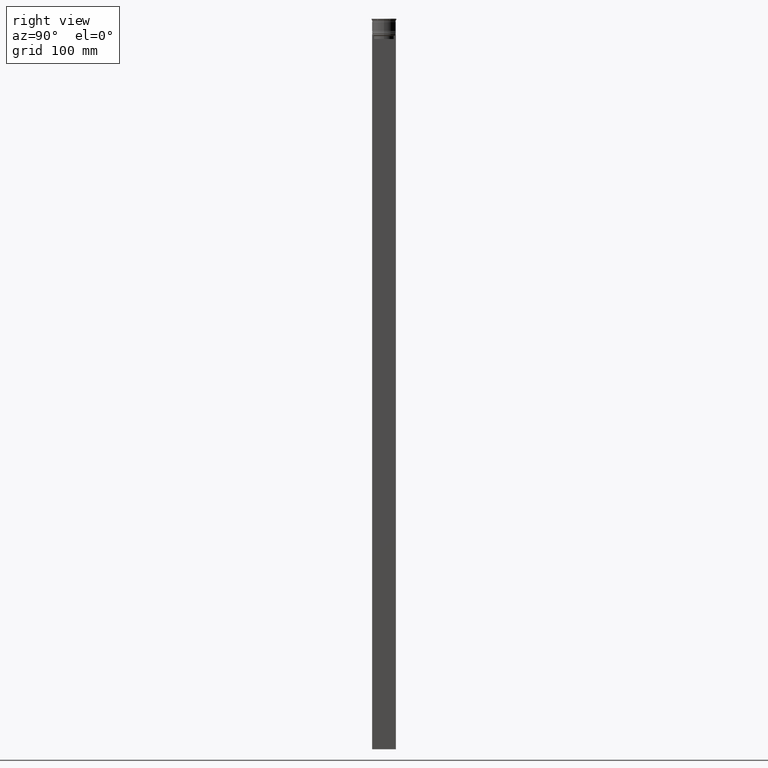
[diagram: clean part render]
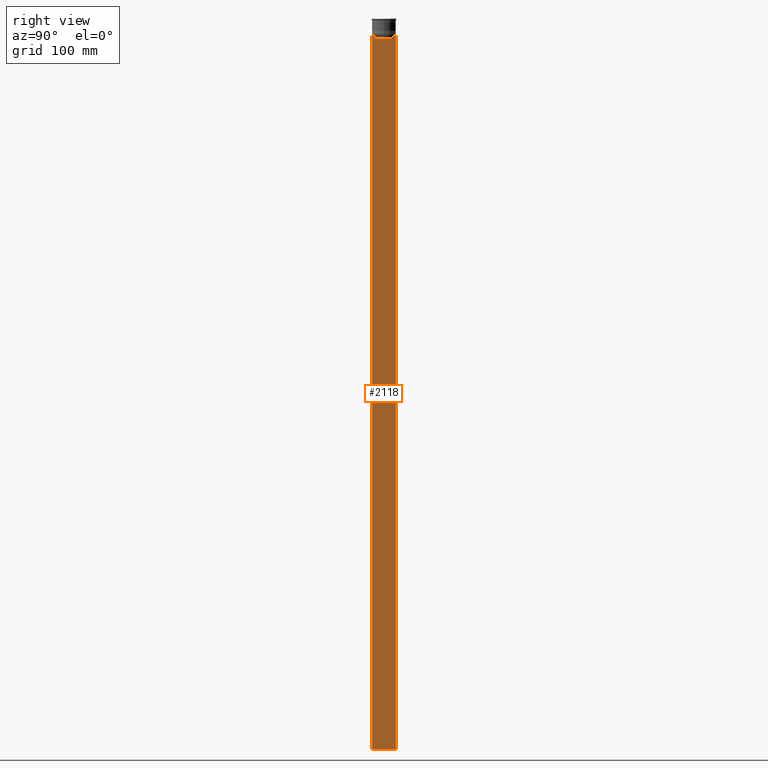
[diagram: same view with one face highlighted and labeled with its STEP entity id]
A machine part, right view. The second image highlights one B-rep face of the part: STEP entity #2118.
In plain terms, the highlighted planar face has unit normal (-1, 0, 0).
Its self-contained STEP definition (entity closure, byte-faithful):
#29 = B_SPLINE_CURVE_WITH_KNOTS ( 'NONE', 3,
 ( #647, #1119, #35, #853 ),
 .UNSPECIFIED., .F., .F.,
 ( 4, 4 ),
 ( 0.03898465126933130243, 0.03969388910599658260 ),
 .UNSPECIFIED. ) ;
#35 = CARTESIAN_POINT ( 'NONE',  ( 0.5000000000000000000, -8.719005764482790966, -14.16667454151159689 ) ) ;
#68 = LINE ( 'NONE', #2167, #1840 ) ;
#73 = DIRECTION ( 'NONE',  ( -1.000000000000000000, 0.000000000000000000, 0.000000000000000000 ) ) ;
#94 = LINE ( 'NONE', #502, #2525 ) ;
#122 = ORIENTED_EDGE ( 'NONE', *, *, #2191, .T. ) ;
#131 = CARTESIAN_POINT ( 'NONE',  ( 0.5000000000000000000, -8.385105843100616241, -14.50000000000000000 ) ) ;
#142 = VERTEX_POINT ( 'NONE', #131 ) ;
#191 = ORIENTED_EDGE ( 'NONE', *, *, #451, .T. ) ;
#192 = ORIENTED_EDGE ( 'NONE', *, *, #595, .T. ) ;
#207 = DIRECTION ( 'NONE',  ( 0.000000000000000000, 0.000000000000000000, -1.000000000000000000 ) ) ;
#208 = ORIENTED_EDGE ( 'NONE', *, *, #1964, .F. ) ;
#234 = VECTOR ( 'NONE', #1994, 1000.000000000000000 ) ;
#262 = EDGE_CURVE ( 'NONE', #840, #1312, #1969, .T. ) ;
#274 = B_SPLINE_CURVE_WITH_KNOTS ( 'NONE', 3,
 ( #2335, #1701, #1115, #1946 ),
 .UNSPECIFIED., .F., .F.,
 ( 4, 4 ),
 ( 0.01511546479386908018, 0.01582316445439079997 ),
 .UNSPECIFIED. ) ;
#334 = CARTESIAN_POINT ( 'NONE',  ( 0.5000000000000000000, -8.385105843100616241, 0.000000000000000000 ) ) ;
#355 = LINE ( 'NONE', #334, #1877 ) ;
#386 = CARTESIAN_POINT ( 'NONE',  ( 0.5000000000000000000, 9.999999999999998224, 6.024984394500783047 ) ) ;
#435 = VECTOR ( 'NONE', #915, 1000.000000000000000 ) ;
#451 = EDGE_CURVE ( 'NONE', #2462, #1771, #1285, .T. ) ;
#455 = CARTESIAN_POINT ( 'NONE',  ( 0.5000000000000000000, 8.400000000000003908, -17.00000000000000000 ) ) ;
#486 = DIRECTION ( 'NONE',  ( 0.000000000000000000, -1.000000000000000000, 0.000000000000000000 ) ) ;
#502 = CARTESIAN_POINT ( 'NONE',  ( 0.5000000000000000000, 8.385105843100616241, 0.000000000000000000 ) ) ;
#533 = EDGE_CURVE ( 'NONE', #142, #667, #29, .T. ) ;
#565 = DIRECTION ( 'NONE',  ( 0.000000000000000000, -1.000000000000000000, 0.000000000000000000 ) ) ;
#595 = EDGE_CURVE ( 'NONE', #1771, #142, #355, .T. ) ;
#647 = CARTESIAN_POINT ( 'NONE',  ( 0.5000000000000000000, -8.385105843100616241, -14.50000000000000000 ) ) ;
#667 = VERTEX_POINT ( 'NONE', #2416 ) ;
#673 = DIRECTION ( 'NONE',  ( 0.000000000000000000, 0.000000000000000000, 1.000000000000000000 ) ) ;
#688 = VERTEX_POINT ( 'NONE', #859 ) ;
#727 = VERTEX_POINT ( 'NONE', #1600 ) ;
#739 = ORIENTED_EDGE ( 'NONE', *, *, #2084, .T. ) ;
#751 = ORIENTED_EDGE ( 'NONE', *, *, #1781, .T. ) ;
#762 = CARTESIAN_POINT ( 'NONE',  ( 0.5000000000000000000, -10.00000000000000178, -14.00000000000000178 ) ) ;
#837 = LINE ( 'NONE', #386, #1959 ) ;
#840 = VERTEX_POINT ( 'NONE', #2343 ) ;
#841 = EDGE_CURVE ( 'NONE', #727, #1364, #68, .T. ) ;
#853 = CARTESIAN_POINT ( 'NONE',  ( 0.5000000000000000000, -8.885943956609230199, -14.00000000000000178 ) ) ;
#859 = CARTESIAN_POINT ( 'NONE',  ( 0.5000000000000000000, 9.887365675446622149, -14.00000000000000178 ) ) ;
#915 = DIRECTION ( 'NONE',  ( 0.000000000000000000, 0.000000000000000000, -1.000000000000000000 ) ) ;
#921 = EDGE_CURVE ( 'NONE', #2092, #2462, #94, .T. ) ;
#933 = CARTESIAN_POINT ( 'NONE',  ( 0.5000000000000000000, -10.00000000000000178, -14.00000000000000178 ) ) ;
#1032 = EDGE_CURVE ( 'NONE', #688, #1891, #2206, .T. ) ;
#1037 = ORIENTED_EDGE ( 'NONE', *, *, #921, .T. ) ;
#1085 = CARTESIAN_POINT ( 'NONE',  ( 0.5000000000000000000, -10.00000000000000178, 6.024984394500783047 ) ) ;
#1093 = VECTOR ( 'NONE', #565, 1000.000000000000000 ) ;
#1115 = CARTESIAN_POINT ( 'NONE',  ( 0.5000000000000000000, 8.552060201981378285, -14.33334167021640582 ) ) ;
#1119 = CARTESIAN_POINT ( 'NONE',  ( 0.5000000000000000000, -8.552060194457773434, -14.33334167772667023 ) ) ;
#1214 = AXIS2_PLACEMENT_3D ( 'NONE', #1085, #73, #673 ) ;
#1285 = LINE ( 'NONE', #455, #1789 ) ;
#1312 = VERTEX_POINT ( 'NONE', #1941 ) ;
#1314 = DIRECTION ( 'NONE',  ( 0.000000000000000000, -1.000000000000000000, 0.000000000000000000 ) ) ;
#1342 = CARTESIAN_POINT ( 'NONE',  ( 0.5000000000000000000, 8.885943956609230199, -14.00000000000000178 ) ) ;
#1364 = VERTEX_POINT ( 'NONE', #1542 ) ;
#1459 = VECTOR ( 'NONE', #1797, 1000.000000000000000 ) ;
#1473 = ORIENTED_EDGE ( 'NONE', *, *, #262, .T. ) ;
#1520 = FACE_OUTER_BOUND ( 'NONE', #1532, .T. ) ;
#1532 = EDGE_LOOP ( 'NONE', ( #2605, #739, #1037, #191, #192, #2576, #1942, #1993, #122, #1473, #208, #751 ) ) ;
#1542 = CARTESIAN_POINT ( 'NONE',  ( 0.5000000000000000000, -10.00000000000000178, -14.00000000000000178 ) ) ;
#1548 = CARTESIAN_POINT ( 'NONE',  ( 0.5000000000000000000, -10.00000000000000178, 6.024984394500783047 ) ) ;
#1570 = VERTEX_POINT ( 'NONE', #2508 ) ;
#1600 = CARTESIAN_POINT ( 'NONE',  ( 0.5000000000000000000, -9.887365675446622149, -14.00000000000000178 ) ) ;
#1690 = CARTESIAN_POINT ( 'NONE',  ( 0.5000000000000000000, -8.385105843100616241, -17.00000000000000000 ) ) ;
#1701 = CARTESIAN_POINT ( 'NONE',  ( 0.5000000000000000000, 8.719005771582347464, -14.16667453442325453 ) ) ;
#1763 = CARTESIAN_POINT ( 'NONE',  ( 0.5000000000000000000, -10.00000000000000178, -614.0000000000000000 ) ) ;
#1771 = VERTEX_POINT ( 'NONE', #1690 ) ;
#1781 = EDGE_CURVE ( 'NONE', #1570, #688, #2643, .T. ) ;
#1789 = VECTOR ( 'NONE', #1314, 1000.000000000000000 ) ;
#1797 = DIRECTION ( 'NONE',  ( 0.000000000000000000, -1.000000000000000000, 0.000000000000000000 ) ) ;
#1840 = VECTOR ( 'NONE', #486, 1000.000000000000000 ) ;
#1877 = VECTOR ( 'NONE', #2199, 1000.000000000000000 ) ;
#1891 = VERTEX_POINT ( 'NONE', #1342 ) ;
#1941 = CARTESIAN_POINT ( 'NONE',  ( 0.5000000000000000000, 9.999999999999998224, -614.0000000000000000 ) ) ;
#1942 = ORIENTED_EDGE ( 'NONE', *, *, #2271, .T. ) ;
#1943 = DIRECTION ( 'NONE',  ( 0.000000000000000000, 0.000000000000000000, -1.000000000000000000 ) ) ;
#1946 = CARTESIAN_POINT ( 'NONE',  ( 0.5000000000000000000, 8.385105843100616241, -14.50000000000000000 ) ) ;
#1959 = VECTOR ( 'NONE', #207, 1000.000000000000000 ) ;
#1964 = EDGE_CURVE ( 'NONE', #1570, #1312, #837, .T. ) ;
#1969 = LINE ( 'NONE', #1763, #234 ) ;
#1993 = ORIENTED_EDGE ( 'NONE', *, *, #841, .T. ) ;
#1994 = DIRECTION ( 'NONE',  ( 0.000000000000000000, 1.000000000000000000, 0.000000000000000000 ) ) ;
#2002 = LINE ( 'NONE', #2221, #1459 ) ;
#2084 = EDGE_CURVE ( 'NONE', #1891, #2092, #274, .T. ) ;
#2089 = VECTOR ( 'NONE', #2591, 1000.000000000000000 ) ;
#2092 = VERTEX_POINT ( 'NONE', #2307 ) ;
#2118 = ADVANCED_FACE ( 'NONE', ( #1520 ), #2347, .F. ) ;
#2167 = CARTESIAN_POINT ( 'NONE',  ( 0.5000000000000000000, -10.00000000000000178, -14.00000000000000178 ) ) ;
#2191 = EDGE_CURVE ( 'NONE', #1364, #840, #2390, .T. ) ;
#2199 = DIRECTION ( 'NONE',  ( -0.000000000000000000, -0.000000000000000000, 1.000000000000000000 ) ) ;
#2206 = LINE ( 'NONE', #762, #1093 ) ;
#2221 = CARTESIAN_POINT ( 'NONE',  ( 0.5000000000000000000, -10.00000000000000178, -14.00000000000000178 ) ) ;
#2271 = EDGE_CURVE ( 'NONE', #667, #727, #2002, .T. ) ;
#2307 = CARTESIAN_POINT ( 'NONE',  ( 0.5000000000000000000, 8.385105843100616241, -14.50000000000000000 ) ) ;
#2335 = CARTESIAN_POINT ( 'NONE',  ( 0.5000000000000000000, 8.885943956609230199, -14.00000000000000178 ) ) ;
#2343 = CARTESIAN_POINT ( 'NONE',  ( 0.5000000000000000000, -10.00000000000000178, -614.0000000000000000 ) ) ;
#2347 = PLANE ( 'NONE',  #1214 ) ;
#2390 = LINE ( 'NONE', #1548, #435 ) ;
#2416 = CARTESIAN_POINT ( 'NONE',  ( 0.5000000000000000000, -8.885943956609230199, -14.00000000000000178 ) ) ;
#2462 = VERTEX_POINT ( 'NONE', #2478 ) ;
#2478 = CARTESIAN_POINT ( 'NONE',  ( 0.5000000000000000000, 8.385105843100616241, -17.00000000000000000 ) ) ;
#2508 = CARTESIAN_POINT ( 'NONE',  ( 0.5000000000000000000, 9.999999999999998224, -14.00000000000000178 ) ) ;
#2525 = VECTOR ( 'NONE', #1943, 1000.000000000000000 ) ;
#2576 = ORIENTED_EDGE ( 'NONE', *, *, #533, .T. ) ;
#2591 = DIRECTION ( 'NONE',  ( 0.000000000000000000, -1.000000000000000000, 0.000000000000000000 ) ) ;
#2605 = ORIENTED_EDGE ( 'NONE', *, *, #1032, .T. ) ;
#2643 = LINE ( 'NONE', #933, #2089 ) ;